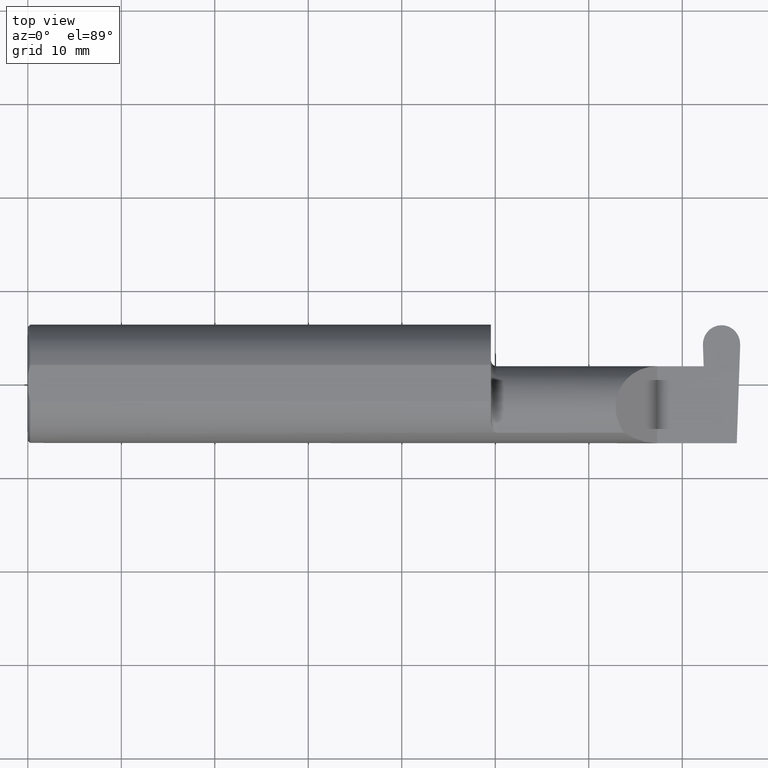
[diagram: clean part render]
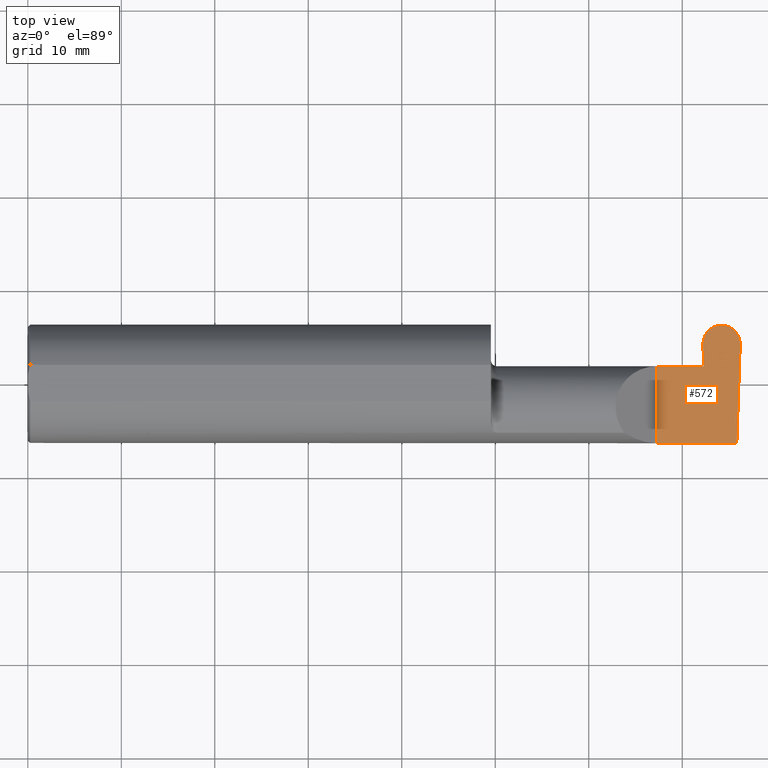
[diagram: same view with one face highlighted and labeled with its STEP entity id]
A machine part, top view. The second image highlights one B-rep face of the part: STEP entity #572.
In plain terms, the highlighted planar face has unit normal (-0, 0, -1).
Its self-contained STEP definition (entity closure, byte-faithful):
#5 = CARTESIAN_POINT ( 'NONE',  ( 2.921940976684220370, 0.2471499999999999808, 0.000000000000000000 ) ) ;
#34 = PLANE ( 'NONE',  #379 ) ;
#47 = EDGE_CURVE ( 'NONE', #692, #403, #86, .T. ) ;
#57 =( BOUNDED_CURVE ( )  B_SPLINE_CURVE ( 3, ( #137, #300, #569, #307 ),
 .UNSPECIFIED., .F., .T. ) 
 B_SPLINE_CURVE_WITH_KNOTS ( ( 4, 4 ),
 ( 3.045231736429742764, 4.645220385064936508 ),
 .UNSPECIFIED. ) 
 CURVE ( )  GEOMETRIC_REPRESENTATION_ITEM ( )  RATIONAL_B_SPLINE_CURVE ( ( 1.000000000000000000, 0.7978071872141905274, 0.7978071872141905274, 1.000000000000000000 ) ) 
 REPRESENTATION_ITEM ( '' )  );
#83 = EDGE_LOOP ( 'NONE', ( #187, #497, #530, #246, #335, #442, #244, #594, #118 ) ) ;
#86 = LINE ( 'NONE', #308, #353 ) ;
#87 =( BOUNDED_CURVE ( )  B_SPLINE_CURVE ( 3, ( #556, #549, #278, #5 ),
 .UNSPECIFIED., .F., .T. ) 
 B_SPLINE_CURVE_WITH_KNOTS ( ( 4, 4 ),
 ( 1.637964922114649946, 3.237953570749842136 ),
 .UNSPECIFIED. ) 
 CURVE ( )  GEOMETRIC_REPRESENTATION_ITEM ( )  RATIONAL_B_SPLINE_CURVE ( ( 1.000000000000000000, 0.7978071872141907495, 0.7978071872141907495, 1.000000000000000000 ) ) 
 REPRESENTATION_ITEM ( '' )  );
#93 = LINE ( 'NONE', #257, #404 ) ;
#103 = LINE ( 'NONE', #154, #204 ) ;
#105 = DIRECTION ( 'NONE',  ( -1.000000000000000000, -0.000000000000000000, -0.000000000000000000 ) ) ;
#118 = ORIENTED_EDGE ( 'NONE', *, *, #689, .T. ) ;
#126 = CARTESIAN_POINT ( 'NONE',  ( 2.650000000000000355, -0.2500000000000000555, 4.286263797015729199E-17 ) ) ;
#134 = EDGE_CURVE ( 'NONE', #398, #344, #314, .T. ) ;
#137 = CARTESIAN_POINT ( 'NONE',  ( 2.920795643315781120, 0.2471499999999999808, 0.000000000000000000 ) ) ;
#148 = CARTESIAN_POINT ( 'NONE',  ( 2.842784520300991158, 0.1657741035941333874, 0.000000000000000000 ) ) ;
#152 = VERTEX_POINT ( 'NONE', #205 ) ;
#154 = CARTESIAN_POINT ( 'NONE',  ( 2.845984104502489398, 0.07414999999999977165, 0.000000000000000000 ) ) ;
#159 = FACE_OUTER_BOUND ( 'NONE', #83, .T. ) ;
#168 = CARTESIAN_POINT ( 'NONE',  ( 2.834942811380418259, 0.07414999999999977165, 0.000000000000000000 ) ) ;
#180 = VECTOR ( 'NONE', #443, 39.37007874015748143 ) ;
#187 = ORIENTED_EDGE ( 'NONE', *, *, #47, .F. ) ;
#188 = EDGE_CURVE ( 'NONE', #545, #152, #263, .T. ) ;
#190 = CARTESIAN_POINT ( 'NONE',  ( 2.650000000000000355, -0.2498499999999999610, 4.286263797015729199E-17 ) ) ;
#199 = EDGE_CURVE ( 'NONE', #358, #376, #482, .T. ) ;
#204 = VECTOR ( 'NONE', #440, 39.37007874015748143 ) ;
#205 = CARTESIAN_POINT ( 'NONE',  ( 2.842863629214074095, 0.1635087207221616323, 0.000000000000000000 ) ) ;
#225 = LINE ( 'NONE', #126, #180 ) ;
#243 = CARTESIAN_POINT ( 'NONE',  ( 2.650000000000000355, 0.07414999999999999369, 1.285879139104719253E-16 ) ) ;
#244 = ORIENTED_EDGE ( 'NONE', *, *, #199, .F. ) ;
#246 = ORIENTED_EDGE ( 'NONE', *, *, #546, .F. ) ;
#257 = CARTESIAN_POINT ( 'NONE',  ( 2.999952099699010333, 0.1657741035941333874, 0.000000000000000000 ) ) ;
#263 = LINE ( 'NONE', #148, #297 ) ;
#278 = CARTESIAN_POINT ( 'NONE',  ( 2.969012533631873119, 0.2471500000000000918, 2.705682905371335382E-18 ) ) ;
#297 = VECTOR ( 'NONE', #371, 39.37007874015748143 ) ;
#300 = CARTESIAN_POINT ( 'NONE',  ( 2.873724086368128372, 0.2471500000000001473, 1.543549517755541833E-17 ) ) ;
#307 = CARTESIAN_POINT ( 'NONE',  ( 2.842863629214074095, 0.1635087207221616323, 0.000000000000000000 ) ) ;
#308 = CARTESIAN_POINT ( 'NONE',  ( -0.002039370078740339320, 0.2471499999999999808, 0.000000000000000000 ) ) ;
#314 = LINE ( 'NONE', #485, #704 ) ;
#327 = EDGE_CURVE ( 'NONE', #376, #398, #225, .T. ) ;
#329 = CARTESIAN_POINT ( 'NONE',  ( 2.920795643315781120, 0.2471499999999999808, 0.000000000000000000 ) ) ;
#335 = ORIENTED_EDGE ( 'NONE', *, *, #134, .F. ) ;
#344 = VERTEX_POINT ( 'NONE', #168 ) ;
#353 = VECTOR ( 'NONE', #522, 39.37007874015748143 ) ;
#358 = VERTEX_POINT ( 'NONE', #658 ) ;
#371 = DIRECTION ( 'NONE',  ( -0.03489949670249602176, 0.9993908270190959842, -0.000000000000000000 ) ) ;
#374 = CARTESIAN_POINT ( 'NONE',  ( 3.000000000000000444, -0.2500000000000000555, 0.000000000000000000 ) ) ;
#376 = VERTEX_POINT ( 'NONE', #190 ) ;
#379 = AXIS2_PLACEMENT_3D ( 'NONE', #374, #638, #701 ) ;
#398 = VERTEX_POINT ( 'NONE', #243 ) ;
#403 = VERTEX_POINT ( 'NONE', #634 ) ;
#404 = VECTOR ( 'NONE', #477, 39.37007874015748854 ) ;
#425 = EDGE_CURVE ( 'NONE', #692, #152, #57, .T. ) ;
#440 = DIRECTION ( 'NONE',  ( 1.000000000000000000, -0.000000000000000000, -0.000000000000000000 ) ) ;
#442 = ORIENTED_EDGE ( 'NONE', *, *, #327, .F. ) ;
#443 = DIRECTION ( 'NONE',  ( -0.000000000000000000, 1.000000000000000000, -0.000000000000000000 ) ) ;
#477 = DIRECTION ( 'NONE',  ( -0.03489949670249561930, -0.9993908270190959842, 0.000000000000000000 ) ) ;
#482 = LINE ( 'NONE', #544, #523 ) ;
#485 = CARTESIAN_POINT ( 'NONE',  ( 1.950000000000000178, 0.07414999999999996594, 1.285879139104719253E-16 ) ) ;
#497 = ORIENTED_EDGE ( 'NONE', *, *, #425, .T. ) ;
#508 = VERTEX_POINT ( 'NONE', #531 ) ;
#522 = DIRECTION ( 'NONE',  ( 1.000000000000000000, -0.000000000000000000, -0.000000000000000000 ) ) ;
#523 = VECTOR ( 'NONE', #105, 39.37007874015748143 ) ;
#530 = ORIENTED_EDGE ( 'NONE', *, *, #188, .F. ) ;
#531 = CARTESIAN_POINT ( 'NONE',  ( 2.999872990785927396, 0.1635087207221616878, 0.000000000000000000 ) ) ;
#544 = CARTESIAN_POINT ( 'NONE',  ( 4.499279347985562423E-32, -0.2498499999999999610, 3.673940397442054938E-16 ) ) ;
#545 = VERTEX_POINT ( 'NONE', #686 ) ;
#546 = EDGE_CURVE ( 'NONE', #344, #545, #103, .T. ) ;
#549 = CARTESIAN_POINT ( 'NONE',  ( 3.001573456183361799, 0.2122036785419296745, -1.281880052625236500E-18 ) ) ;
#556 = CARTESIAN_POINT ( 'NONE',  ( 2.999872990785927396, 0.1635087207221616878, 0.000000000000000000 ) ) ;
#569 = CARTESIAN_POINT ( 'NONE',  ( 2.841163163816639692, 0.2122036785419297300, 1.942305813555199541E-17 ) ) ;
#572 = ADVANCED_FACE ( 'NONE', ( #159 ), #34, .F. ) ;
#580 = EDGE_CURVE ( 'NONE', #508, #358, #93, .T. ) ;
#594 = ORIENTED_EDGE ( 'NONE', *, *, #580, .F. ) ;
#634 = CARTESIAN_POINT ( 'NONE',  ( 2.921940976684220370, 0.2471499999999999808, 0.000000000000000000 ) ) ;
#638 = DIRECTION ( 'NONE',  ( -1.224646799147351975E-16, 0.000000000000000000, -1.000000000000000000 ) ) ;
#658 = CARTESIAN_POINT ( 'NONE',  ( 2.985438186182187259, -0.2498499999999999888, 0.000000000000000000 ) ) ;
#686 = CARTESIAN_POINT ( 'NONE',  ( 2.845984104502489398, 0.07414999999999977165, 0.000000000000000000 ) ) ;
#687 = DIRECTION ( 'NONE',  ( 1.000000000000000000, 3.825103525024356331E-17, 0.000000000000000000 ) ) ;
#689 = EDGE_CURVE ( 'NONE', #508, #403, #87, .T. ) ;
#692 = VERTEX_POINT ( 'NONE', #329 ) ;
#701 = DIRECTION ( 'NONE',  ( -1.000000000000000000, 0.000000000000000000, 1.224646799147351975E-16 ) ) ;
#704 = VECTOR ( 'NONE', #687, 39.37007874015748143 ) ;